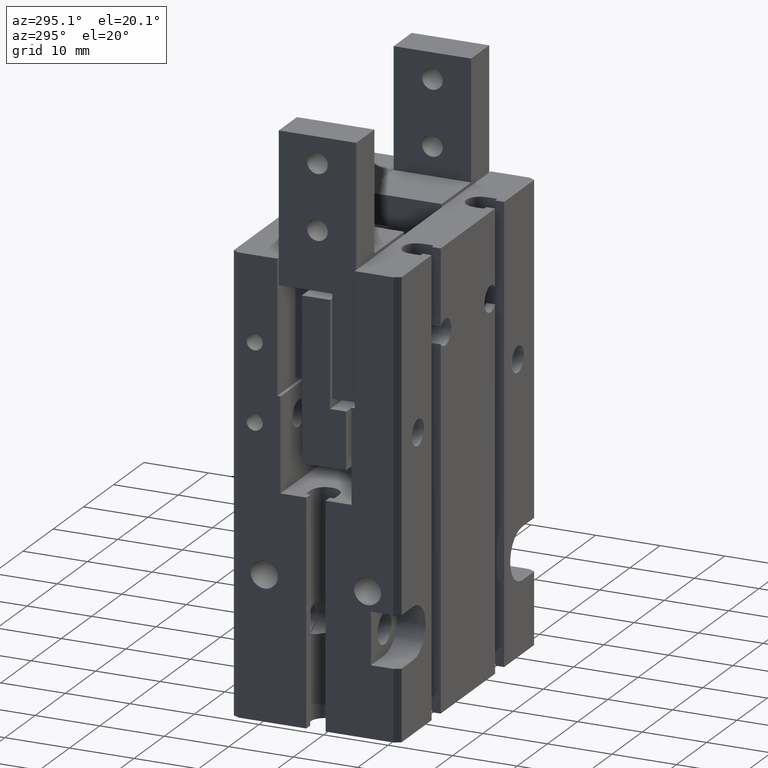
[diagram: clean part render]
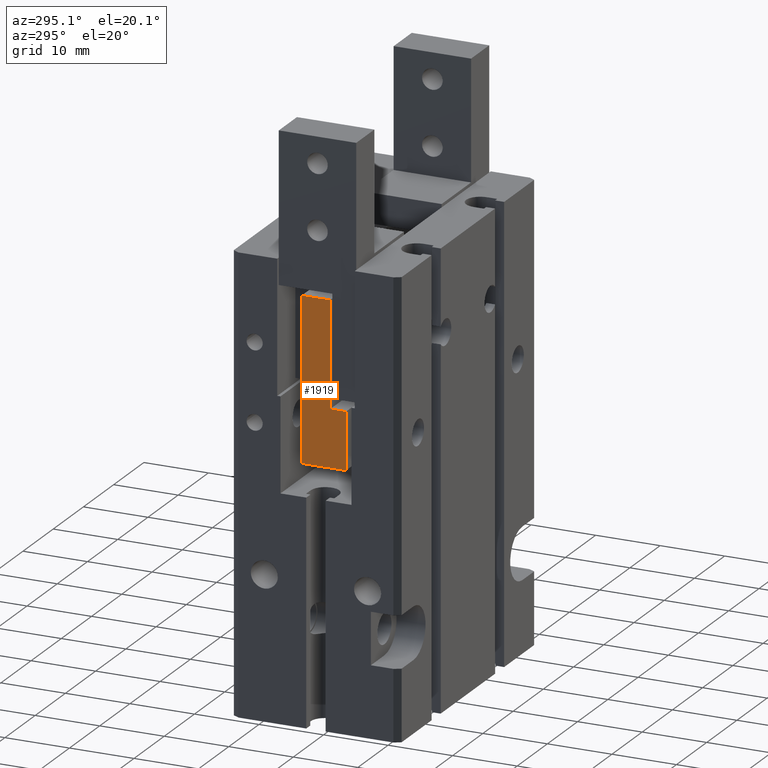
[diagram: same view with one face highlighted and labeled with its STEP entity id]
A machine part, auxiliary view. The second image highlights one B-rep face of the part: STEP entity #1919.
In plain terms, the highlighted planar face has unit normal (-1, 0, -0).
Its self-contained STEP definition (entity closure, byte-faithful):
#1192=CARTESIAN_POINT('',(-22.4999869870843,-2.19998698708419,48.311));
#1193=VERTEX_POINT('Vertex51',#1192);
#1194=CARTESIAN_POINT('',(-22.4999869870843,-2.19998698708419,64.6));
#1195=VERTEX_POINT('Vertex50',#1194);
#1196=CARTESIAN_POINT('',(-22.4999869870843,-2.19998698708419,56.4555));
#1197=DIRECTION('',(-4.36210163767021E-016,-5.45262704708776E-017,1.));
#1198=VECTOR('',#1197,1.);
#1199=LINE('nurbsCrv70',#1196,#1198);
#1200=EDGE_CURVE('Edge70',#1193,#1195,#1199,.T.);
#1764=CARTESIAN_POINT('',(-22.4999869870843,-4.66548698708419,48.311));
#1765=VERTEX_POINT('Vertex86',#1764);
#1766=CARTESIAN_POINT('',(-22.4999869870843,-3.43273698708419,48.311));
#1767=DIRECTION('',(-4.32291260855871E-015,-1.,0.));
#1768=VECTOR('',#1767,1.);
#1769=LINE('nurbsCrv109',#1766,#1768);
#1770=EDGE_CURVE('Edge109',#1193,#1765,#1769,.T.);
#1838=CARTESIAN_POINT('',(-22.4999869870843,-4.66548698708419,39.5));
#1839=VERTEX_POINT('Vertex91',#1838);
#1846=CARTESIAN_POINT('',(-22.4999869870843,2.20001301291581,39.5));
#1847=VERTEX_POINT('Vertex92',#1846);
#1848=CARTESIAN_POINT('',(-22.4999869870843,-1.23273698708419,39.5));
#1849=DIRECTION('',(3.6223138521016E-015,1.,0.));
#1850=VECTOR('',#1849,1.);
#1851=LINE('nurbsCrv117',#1848,#1850);
#1852=EDGE_CURVE('Edge117',#1839,#1847,#1851,.T.);
#1868=CARTESIAN_POINT('',(-22.4999869870843,-4.66548698708419,43.9055));
#1869=DIRECTION('',(4.03213446691692E-016,-1.00803361672923E-016,-1.));
#1870=VECTOR('',#1869,1.);
#1871=LINE('nurbsCrv119',#1868,#1870);
#1872=EDGE_CURVE('Edge119',#1765,#1839,#1871,.T.);
#1894=ORIENTED_EDGE('Edgeuse200',*,*,#1852,.F.);
#1895=ORIENTED_EDGE('Edgeuse201',*,*,#1872,.F.);
#1896=ORIENTED_EDGE('Edgeuse202',*,*,#1770,.F.);
#1897=ORIENTED_EDGE('Edgeuse203',*,*,#1200,.T.);
#1898=CARTESIAN_POINT('',(-22.4999869870843,2.20001301291581,64.6));
#1899=VERTEX_POINT('Vertex93',#1898);
#1900=CARTESIAN_POINT('',(-22.4999869870843,1.30129158080194E-005,64.6));
#1901=DIRECTION('',(3.22973970800046E-015,1.,0.));
#1902=VECTOR('',#1901,1.);
#1903=LINE('nurbsCrv121',#1900,#1902);
#1904=EDGE_CURVE('Edge121',#1195,#1899,#1903,.T.);
#1905=ORIENTED_EDGE('Edgeuse204',*,*,#1904,.T.);
#1906=CARTESIAN_POINT('',(-22.4999869870843,2.20001301291581,52.05));
#1907=DIRECTION('',(-4.24627132924363E-016,-1.76927972051818E-017,1.));
#1908=VECTOR('',#1907,1.);
#1909=LINE('nurbsCrv122',#1906,#1908);
#1910=EDGE_CURVE('Edge122',#1847,#1899,#1909,.T.);
#1911=ORIENTED_EDGE('Edgeuse205',*,*,#1910,.F.);
#1912=EDGE_LOOP('',(#1894,#1895,#1896,#1897,#1905,#1911));
#1913=FACE_OUTER_BOUND('',#1912,.T.);
#1914=CARTESIAN_POINT('',(-22.4999869870843,-1.23273698708419,52.05));
#1915=DIRECTION('',(-1.,3.29301259281959E-015,-2.57349777529927E-016));
#1916=DIRECTION('',(-3.2930125928196E-015,-1.,2.8225822224168E-015));
#1917=AXIS2_PLACEMENT_3D('',#1914,#1915,#1916);
#1918=PLANE('nurbsSrf42',#1917);
#1919=ADVANCED_FACE('Face42',(#1913),#1918,.T.);